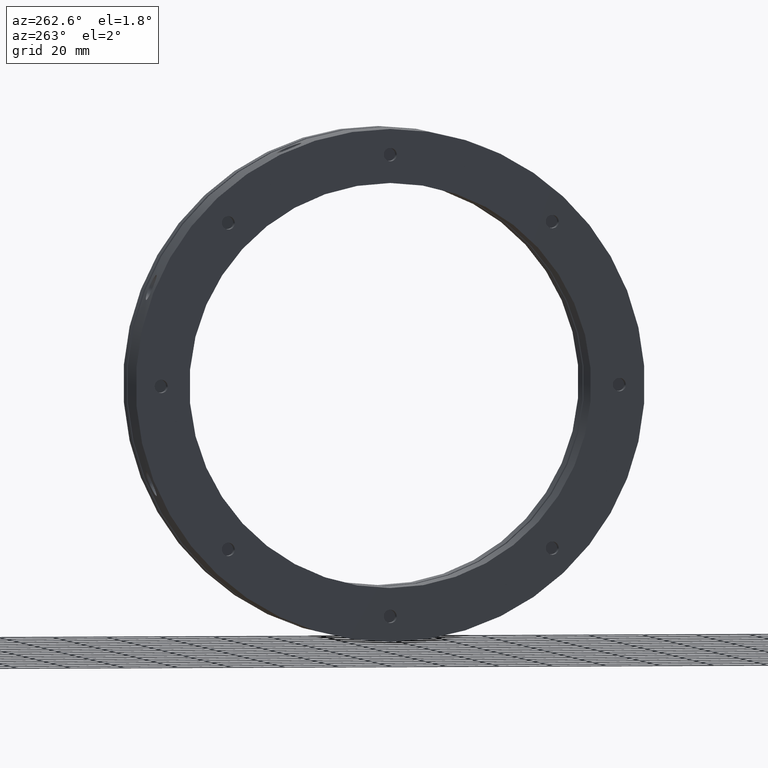
[diagram: clean part render]
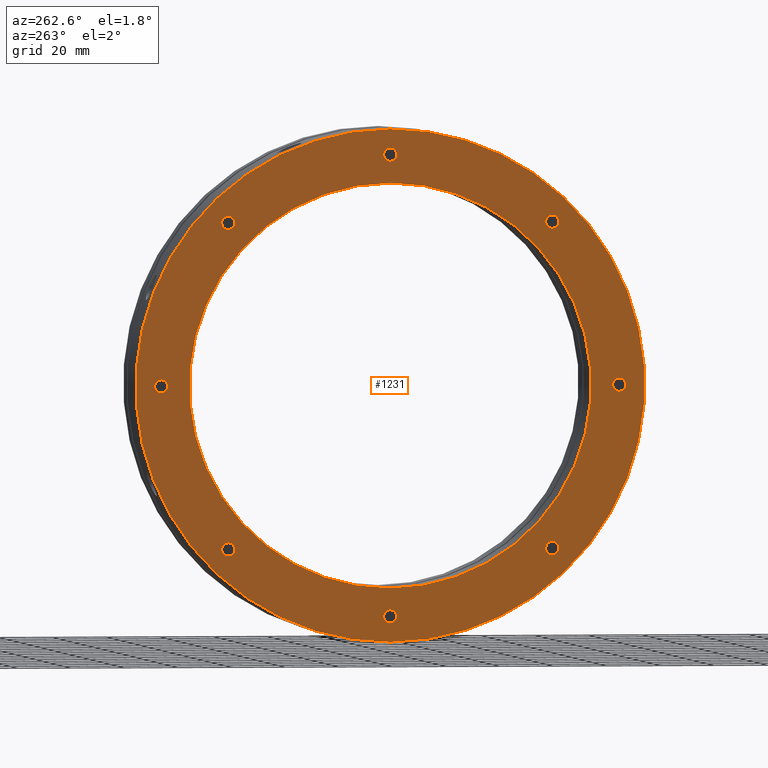
[diagram: same view with one face highlighted and labeled with its STEP entity id]
A machine part, auxiliary view. The second image highlights one B-rep face of the part: STEP entity #1231.
In plain terms, the highlighted planar face has unit normal (-1, 0, 0).
Its self-contained STEP definition (entity closure, byte-faithful):
#51 = FACE_BOUND ( 'NONE', #1506, .T. ) ;
#53 = FACE_BOUND ( 'NONE', #1517, .T. ) ;
#55 = FACE_BOUND ( 'NONE', #1516, .T. ) ;
#58 = FACE_BOUND ( 'NONE', #1488, .T. ) ;
#142 = FACE_OUTER_BOUND ( 'NONE', #1532, .T. ) ;
#462 = CARTESIAN_POINT ( 'NONE',  ( -2.428612866367529900E-014, 85.50000000000000000, -2.458500000000008300 ) ) ;
#488 = CARTESIAN_POINT ( 'NONE',  ( -2.428612866367529900E-014, -8.580704584429623500E-015, -87.95850000000001500 ) ) ;
#489 = CARTESIAN_POINT ( 'NONE',  ( -2.428612866367529900E-014, -85.50000000000000000, -2.458499999999999900 ) ) ;
#490 = CARTESIAN_POINT ( 'NONE',  ( -2.428612866367529900E-014, 85.50000000000000000, 2.458499999999991000 ) ) ;
#504 = CARTESIAN_POINT ( 'NONE',  ( -2.428612866367529900E-014, -60.45762979144981800, -62.91612979144981200 ) ) ;
#523 = CARTESIAN_POINT ( 'NONE',  ( -2.428612866367529900E-014, -8.881783999999999800E-015, -83.04149999999999900 ) ) ;
#528 = CARTESIAN_POINT ( 'NONE',  ( -2.428612866367529900E-014, -60.45762979144981800, -57.99912979144981100 ) ) ;
#530 = CARTESIAN_POINT ( 'NONE',  ( -2.428612866367529900E-014, 60.45762979144980400, -62.91612979144982600 ) ) ;
#532 = CARTESIAN_POINT ( 'NONE',  ( -2.428612866367529900E-014, 60.45762979144980400, -57.99912979144982500 ) ) ;
#533 = CARTESIAN_POINT ( 'NONE',  ( -2.428612866367529900E-014, 60.45762979144983300, 62.91612979144979800 ) ) ;
#605 = CARTESIAN_POINT ( 'NONE',  ( -2.428612866367529900E-014, 60.45762979144983300, 57.99912979144978900 ) ) ;
#666 = CARTESIAN_POINT ( 'NONE',  ( -2.428612866367529900E-014, -60.45762979144981800, -60.45762979144981100 ) ) ;
#667 = DIRECTION ( 'NONE',  ( 1.000000000000000000, -0.0000000000000000000, -0.0000000000000000000 ) ) ;
#668 = DIRECTION ( 'NONE',  ( 0.0000000000000000000, 0.0000000000000000000, 1.000000000000000000 ) ) ;
#692 = CARTESIAN_POINT ( 'NONE',  ( -2.428612866367529900E-014, -8.881783999999999800E-015, -85.50000000000000000 ) ) ;
#693 = DIRECTION ( 'NONE',  ( 1.000000000000000000, -0.0000000000000000000, -0.0000000000000000000 ) ) ;
#694 = DIRECTION ( 'NONE',  ( 0.0000000000000000000, 0.0000000000000000000, 1.000000000000000000 ) ) ;
#848 = CARTESIAN_POINT ( 'NONE',  ( -2.428612866367529900E-014, 85.50000000000000000, -8.881783999999999800E-015 ) ) ;
#849 = DIRECTION ( 'NONE',  ( 1.000000000000000000, -0.0000000000000000000, -0.0000000000000000000 ) ) ;
#850 = DIRECTION ( 'NONE',  ( 0.0000000000000000000, 0.0000000000000000000, 1.000000000000000000 ) ) ;
#956 = CARTESIAN_POINT ( 'NONE',  ( -2.428612866367529900E-014, 60.45762979144980400, -60.45762979144982600 ) ) ;
#957 = DIRECTION ( 'NONE',  ( 1.000000000000000000, -0.0000000000000000000, -0.0000000000000000000 ) ) ;
#958 = DIRECTION ( 'NONE',  ( 0.0000000000000000000, 0.0000000000000000000, 1.000000000000000000 ) ) ;
#1010 = CARTESIAN_POINT ( 'NONE',  ( -2.428612866367529900E-014, 60.45762979144983300, 60.45762979144979000 ) ) ;
#1011 = DIRECTION ( 'NONE',  ( 1.000000000000000000, -0.0000000000000000000, -0.0000000000000000000 ) ) ;
#1012 = DIRECTION ( 'NONE',  ( 0.0000000000000000000, 0.0000000000000000000, 1.000000000000000000 ) ) ;
#1035 = CARTESIAN_POINT ( 'NONE',  ( -2.428612866367529900E-014, 0.0000000000000000000, 85.50000000000000000 ) ) ;
#1036 = DIRECTION ( 'NONE',  ( 1.000000000000000000, -0.0000000000000000000, -0.0000000000000000000 ) ) ;
#1037 = DIRECTION ( 'NONE',  ( 0.0000000000000000000, 0.0000000000000000000, 1.000000000000000000 ) ) ;
#1052 = CARTESIAN_POINT ( 'NONE',  ( -2.428612866367529900E-014, -85.50000000000000000, 0.0000000000000000000 ) ) ;
#1053 = DIRECTION ( 'NONE',  ( 1.000000000000000000, -0.0000000000000000000, -0.0000000000000000000 ) ) ;
#1054 = DIRECTION ( 'NONE',  ( 0.0000000000000000000, 0.0000000000000000000, 1.000000000000000000 ) ) ;
#1069 = CARTESIAN_POINT ( 'NONE',  ( -2.081668171172168500E-014, 0.0000000000000000000, 0.0000000000000000000 ) ) ;
#1070 = DIRECTION ( 'NONE',  ( 1.000000000000000000, 0.0000000000000000000, 0.0000000000000000000 ) ) ;
#1071 = DIRECTION ( 'NONE',  ( 0.0000000000000000000, 0.0000000000000000000, -1.000000000000000000 ) ) ;
#1121 = CARTESIAN_POINT ( 'NONE',  ( -2.428612866367529900E-014, -60.45762979144981100, 60.45762979144981800 ) ) ;
#1122 = DIRECTION ( 'NONE',  ( 1.000000000000000000, -0.0000000000000000000, -0.0000000000000000000 ) ) ;
#1123 = DIRECTION ( 'NONE',  ( 0.0000000000000000000, 0.0000000000000000000, 1.000000000000000000 ) ) ;
#1149 = CIRCLE ( 'NONE', #5684, 2.458500000000002600 ) ;
#1185 = CIRCLE ( 'NONE', #1756, 2.458500000000002600 ) ;
#1231 = ADVANCED_FACE ( 'NONE', ( #3582, #3574, #3580, #3587, #3579, #53, #55, #51, #58, #142 ), #5750, .T. ) ;
#1399 = VERTEX_POINT ( 'NONE', #462 ) ;
#1439 = VERTEX_POINT ( 'NONE', #488 ) ;
#1441 = VERTEX_POINT ( 'NONE', #489 ) ;
#1442 = VERTEX_POINT ( 'NONE', #490 ) ;
#1465 = VERTEX_POINT ( 'NONE', #504 ) ;
#1488 = EDGE_LOOP ( 'NONE', ( #5402, #5401 ) ) ;
#1490 = EDGE_LOOP ( 'NONE', ( #5412, #5411 ) ) ;
#1492 = EDGE_LOOP ( 'NONE', ( #5418, #5417 ) ) ;
#1502 = EDGE_LOOP ( 'NONE', ( #5410, #5409 ) ) ;
#1506 = EDGE_LOOP ( 'NONE', ( #5404, #5403 ) ) ;
#1508 = VERTEX_POINT ( 'NONE', #523 ) ;
#1513 = EDGE_LOOP ( 'NONE', ( #5414, #5413 ) ) ;
#1516 = EDGE_LOOP ( 'NONE', ( #5406, #5405 ) ) ;
#1517 = EDGE_LOOP ( 'NONE', ( #5408, #5407 ) ) ;
#1522 = EDGE_LOOP ( 'NONE', ( #5416, #5415 ) ) ;
#1527 = VERTEX_POINT ( 'NONE', #528 ) ;
#1532 = EDGE_LOOP ( 'NONE', ( #5400, #5399 ) ) ;
#1534 = VERTEX_POINT ( 'NONE', #530 ) ;
#1536 = VERTEX_POINT ( 'NONE', #532 ) ;
#1541 = VERTEX_POINT ( 'NONE', #533 ) ;
#1614 = VERTEX_POINT ( 'NONE', #605 ) ;
#1674 = CIRCLE ( 'NONE', #1765, 2.458500000000002600 ) ;
#1688 = CIRCLE ( 'NONE', #1766, 2.458500000000002600 ) ;
#1756 = AXIS2_PLACEMENT_3D ( 'NONE', #956, #957, #958 ) ;
#1765 = AXIS2_PLACEMENT_3D ( 'NONE', #692, #693, #694 ) ;
#1766 = AXIS2_PLACEMENT_3D ( 'NONE', #666, #667, #668 ) ;
#1785 = AXIS2_PLACEMENT_3D ( 'NONE', #848, #849, #850 ) ;
#1817 = AXIS2_PLACEMENT_3D ( 'NONE', #5757, #5753, #5759 ) ;
#1840 = EDGE_CURVE ( 'NONE', #1527, #1465, #1688, .T. ) ;
#1850 = EDGE_CURVE ( 'NONE', #1508, #1439, #1674, .T. ) ;
#1886 = CIRCLE ( 'NONE', #5677, 2.458500000000002600 ) ;
#2427 = CARTESIAN_POINT ( 'NONE',  ( -2.428612866367529900E-014, -85.50000000000000000, 2.458499999999999900 ) ) ;
#2432 = CARTESIAN_POINT ( 'NONE',  ( -2.428612866367529900E-014, -60.45762979144981100, 57.99912979144981800 ) ) ;
#2437 = CARTESIAN_POINT ( 'NONE',  ( -2.428612866367529900E-014, 3.010794155703764200E-016, 83.04149999999999900 ) ) ;
#2442 = CARTESIAN_POINT ( 'NONE',  ( -2.428612866367529900E-014, -60.45762979144981100, 62.91612979144982600 ) ) ;
#2444 = CARTESIAN_POINT ( 'NONE',  ( -2.428612866367529900E-014, 0.0000000000000000000, 87.95850000000001500 ) ) ;
#2446 = CARTESIAN_POINT ( 'NONE',  ( -2.081668171172168500E-014, 9.184850993605148700E-015, 75.00000000000000000 ) ) ;
#2462 = CARTESIAN_POINT ( 'NONE',  ( -2.081668171172168500E-014, 0.0000000000000000000, -75.00000000000000000 ) ) ;
#2464 = CARTESIAN_POINT ( 'NONE',  ( -2.775557561562891400E-014, 0.0000000000000000000, -95.00000000000000000 ) ) ;
#2489 = CARTESIAN_POINT ( 'NONE',  ( -2.775557561562891400E-014, 1.163414459189985600E-014, 95.00000000000000000 ) ) ;
#2529 = CARTESIAN_POINT ( 'NONE',  ( -2.428612866367529900E-014, 60.45762979144983300, 60.45762979144979000 ) ) ;
#2530 = DIRECTION ( 'NONE',  ( 1.000000000000000000, -0.0000000000000000000, -0.0000000000000000000 ) ) ;
#2531 = DIRECTION ( 'NONE',  ( 0.0000000000000000000, 0.0000000000000000000, 1.000000000000000000 ) ) ;
#2532 = CARTESIAN_POINT ( 'NONE',  ( -2.428612866367529900E-014, 85.50000000000000000, -8.881783999999999800E-015 ) ) ;
#2533 = DIRECTION ( 'NONE',  ( 1.000000000000000000, -0.0000000000000000000, -0.0000000000000000000 ) ) ;
#2534 = DIRECTION ( 'NONE',  ( 0.0000000000000000000, 0.0000000000000000000, 1.000000000000000000 ) ) ;
#2535 = CARTESIAN_POINT ( 'NONE',  ( -2.428612866367529900E-014, 60.45762979144980400, -60.45762979144982600 ) ) ;
#2536 = DIRECTION ( 'NONE',  ( 1.000000000000000000, -0.0000000000000000000, -0.0000000000000000000 ) ) ;
#2537 = DIRECTION ( 'NONE',  ( 0.0000000000000000000, 0.0000000000000000000, 1.000000000000000000 ) ) ;
#2538 = CARTESIAN_POINT ( 'NONE',  ( -2.428612866367529900E-014, -8.881783999999999800E-015, -85.50000000000000000 ) ) ;
#2539 = DIRECTION ( 'NONE',  ( 1.000000000000000000, -0.0000000000000000000, -0.0000000000000000000 ) ) ;
#2540 = DIRECTION ( 'NONE',  ( 0.0000000000000000000, 0.0000000000000000000, 1.000000000000000000 ) ) ;
#2541 = CARTESIAN_POINT ( 'NONE',  ( -2.428612866367529900E-014, -60.45762979144981800, -60.45762979144981100 ) ) ;
#2542 = DIRECTION ( 'NONE',  ( 1.000000000000000000, -0.0000000000000000000, -0.0000000000000000000 ) ) ;
#2543 = DIRECTION ( 'NONE',  ( 0.0000000000000000000, 0.0000000000000000000, 1.000000000000000000 ) ) ;
#2544 = CARTESIAN_POINT ( 'NONE',  ( -2.428612866367529900E-014, -85.50000000000000000, 0.0000000000000000000 ) ) ;
#2545 = DIRECTION ( 'NONE',  ( 1.000000000000000000, -0.0000000000000000000, -0.0000000000000000000 ) ) ;
#2546 = DIRECTION ( 'NONE',  ( 0.0000000000000000000, 0.0000000000000000000, 1.000000000000000000 ) ) ;
#2547 = CARTESIAN_POINT ( 'NONE',  ( -2.428612866367529900E-014, -60.45762979144981100, 60.45762979144981800 ) ) ;
#2548 = DIRECTION ( 'NONE',  ( 1.000000000000000000, -0.0000000000000000000, -0.0000000000000000000 ) ) ;
#2549 = DIRECTION ( 'NONE',  ( 0.0000000000000000000, 0.0000000000000000000, 1.000000000000000000 ) ) ;
#2551 = CARTESIAN_POINT ( 'NONE',  ( -2.428612866367529900E-014, 0.0000000000000000000, 85.50000000000000000 ) ) ;
#2552 = DIRECTION ( 'NONE',  ( 1.000000000000000000, -0.0000000000000000000, -0.0000000000000000000 ) ) ;
#2553 = DIRECTION ( 'NONE',  ( 0.0000000000000000000, 0.0000000000000000000, 1.000000000000000000 ) ) ;
#2555 = CARTESIAN_POINT ( 'NONE',  ( -2.081668171172168500E-014, 0.0000000000000000000, 0.0000000000000000000 ) ) ;
#2556 = DIRECTION ( 'NONE',  ( 1.000000000000000000, 0.0000000000000000000, 0.0000000000000000000 ) ) ;
#2557 = DIRECTION ( 'NONE',  ( 0.0000000000000000000, 0.0000000000000000000, -1.000000000000000000 ) ) ;
#2713 = CARTESIAN_POINT ( 'NONE',  ( -2.775557561562891400E-014, 0.0000000000000000000, 0.0000000000000000000 ) ) ;
#2714 = DIRECTION ( 'NONE',  ( 1.000000000000000000, 0.0000000000000000000, 0.0000000000000000000 ) ) ;
#2715 = DIRECTION ( 'NONE',  ( 0.0000000000000000000, 0.0000000000000000000, -1.000000000000000000 ) ) ;
#2992 = CARTESIAN_POINT ( 'NONE',  ( -2.775557561562891400E-014, 0.0000000000000000000, 0.0000000000000000000 ) ) ;
#2993 = DIRECTION ( 'NONE',  ( 1.000000000000000000, 0.0000000000000000000, 0.0000000000000000000 ) ) ;
#2994 = DIRECTION ( 'NONE',  ( 0.0000000000000000000, 0.0000000000000000000, -1.000000000000000000 ) ) ;
#3492 = EDGE_CURVE ( 'NONE', #1442, #1399, #4140, .T. ) ;
#3535 = EDGE_CURVE ( 'NONE', #1536, #1534, #1185, .T. ) ;
#3558 = EDGE_CURVE ( 'NONE', #1541, #1614, #1149, .T. ) ;
#3574 = FACE_BOUND ( 'NONE', #1522, .T. ) ;
#3579 = FACE_BOUND ( 'NONE', #1502, .T. ) ;
#3580 = FACE_BOUND ( 'NONE', #1513, .T. ) ;
#3582 = FACE_BOUND ( 'NONE', #1492, .T. ) ;
#3587 = FACE_BOUND ( 'NONE', #1490, .T. ) ;
#3838 = EDGE_CURVE ( 'NONE', #4163, #4162, #6030, .T. ) ;
#3845 = EDGE_CURVE ( 'NONE', #4155, #1441, #6021, .T. ) ;
#3851 = EDGE_CURVE ( 'NONE', #4165, #4181, #6013, .T. ) ;
#3873 = EDGE_CURVE ( 'NONE', #4159, #4158, #1886, .T. ) ;
#4140 = CIRCLE ( 'NONE', #1785, 2.458499999999999900 ) ;
#4155 = VERTEX_POINT ( 'NONE', #2427 ) ;
#4158 = VERTEX_POINT ( 'NONE', #2432 ) ;
#4159 = VERTEX_POINT ( 'NONE', #2442 ) ;
#4162 = VERTEX_POINT ( 'NONE', #2437 ) ;
#4163 = VERTEX_POINT ( 'NONE', #2444 ) ;
#4165 = VERTEX_POINT ( 'NONE', #2446 ) ;
#4181 = VERTEX_POINT ( 'NONE', #2462 ) ;
#4183 = VERTEX_POINT ( 'NONE', #2464 ) ;
#4208 = VERTEX_POINT ( 'NONE', #2489 ) ;
#4578 = CIRCLE ( 'NONE', #5085, 2.458500000000002600 ) ;
#4579 = CIRCLE ( 'NONE', #5084, 2.458499999999999900 ) ;
#4580 = CIRCLE ( 'NONE', #5083, 2.458500000000002600 ) ;
#4581 = CIRCLE ( 'NONE', #5082, 2.458500000000002600 ) ;
#4582 = CIRCLE ( 'NONE', #5081, 2.458500000000002600 ) ;
#4583 = CIRCLE ( 'NONE', #5080, 2.458499999999999900 ) ;
#4584 = CIRCLE ( 'NONE', #5079, 2.458500000000002600 ) ;
#4585 = CIRCLE ( 'NONE', #5078, 2.458500000000002600 ) ;
#4586 = CIRCLE ( 'NONE', #5077, 75.00000000000000000 ) ;
#4588 = CIRCLE ( 'NONE', #5075, 95.00000000000000000 ) ;
#4652 = CIRCLE ( 'NONE', #5063, 95.00000000000000000 ) ;
#5063 = AXIS2_PLACEMENT_3D ( 'NONE', #2992, #2993, #2994 ) ;
#5075 = AXIS2_PLACEMENT_3D ( 'NONE', #2713, #2714, #2715 ) ;
#5077 = AXIS2_PLACEMENT_3D ( 'NONE', #2555, #2556, #2557 ) ;
#5078 = AXIS2_PLACEMENT_3D ( 'NONE', #2551, #2552, #2553 ) ;
#5079 = AXIS2_PLACEMENT_3D ( 'NONE', #2547, #2548, #2549 ) ;
#5080 = AXIS2_PLACEMENT_3D ( 'NONE', #2544, #2545, #2546 ) ;
#5081 = AXIS2_PLACEMENT_3D ( 'NONE', #2541, #2542, #2543 ) ;
#5082 = AXIS2_PLACEMENT_3D ( 'NONE', #2538, #2539, #2540 ) ;
#5083 = AXIS2_PLACEMENT_3D ( 'NONE', #2535, #2536, #2537 ) ;
#5084 = AXIS2_PLACEMENT_3D ( 'NONE', #2532, #2533, #2534 ) ;
#5085 = AXIS2_PLACEMENT_3D ( 'NONE', #2529, #2530, #2531 ) ;
#5171 = EDGE_CURVE ( 'NONE', #1614, #1541, #4578, .T. ) ;
#5172 = EDGE_CURVE ( 'NONE', #1399, #1442, #4579, .T. ) ;
#5173 = EDGE_CURVE ( 'NONE', #1534, #1536, #4580, .T. ) ;
#5174 = EDGE_CURVE ( 'NONE', #1439, #1508, #4581, .T. ) ;
#5175 = EDGE_CURVE ( 'NONE', #1465, #1527, #4582, .T. ) ;
#5176 = EDGE_CURVE ( 'NONE', #1441, #4155, #4583, .T. ) ;
#5177 = EDGE_CURVE ( 'NONE', #4158, #4159, #4584, .T. ) ;
#5178 = EDGE_CURVE ( 'NONE', #4162, #4163, #4585, .T. ) ;
#5179 = EDGE_CURVE ( 'NONE', #4181, #4165, #4586, .T. ) ;
#5185 = EDGE_CURVE ( 'NONE', #4208, #4183, #4588, .T. ) ;
#5228 = EDGE_CURVE ( 'NONE', #4183, #4208, #4652, .T. ) ;
#5399 = ORIENTED_EDGE ( 'NONE', *, *, #5185, .F. ) ;
#5400 = ORIENTED_EDGE ( 'NONE', *, *, #5228, .F. ) ;
#5401 = ORIENTED_EDGE ( 'NONE', *, *, #5171, .T. ) ;
#5402 = ORIENTED_EDGE ( 'NONE', *, *, #3558, .T. ) ;
#5403 = ORIENTED_EDGE ( 'NONE', *, *, #5172, .T. ) ;
#5404 = ORIENTED_EDGE ( 'NONE', *, *, #3492, .T. ) ;
#5405 = ORIENTED_EDGE ( 'NONE', *, *, #5173, .T. ) ;
#5406 = ORIENTED_EDGE ( 'NONE', *, *, #3535, .T. ) ;
#5407 = ORIENTED_EDGE ( 'NONE', *, *, #5174, .T. ) ;
#5408 = ORIENTED_EDGE ( 'NONE', *, *, #1850, .T. ) ;
#5409 = ORIENTED_EDGE ( 'NONE', *, *, #5175, .T. ) ;
#5410 = ORIENTED_EDGE ( 'NONE', *, *, #1840, .T. ) ;
#5411 = ORIENTED_EDGE ( 'NONE', *, *, #5176, .T. ) ;
#5412 = ORIENTED_EDGE ( 'NONE', *, *, #3845, .T. ) ;
#5413 = ORIENTED_EDGE ( 'NONE', *, *, #5177, .T. ) ;
#5414 = ORIENTED_EDGE ( 'NONE', *, *, #3873, .T. ) ;
#5415 = ORIENTED_EDGE ( 'NONE', *, *, #5178, .T. ) ;
#5416 = ORIENTED_EDGE ( 'NONE', *, *, #3838, .T. ) ;
#5417 = ORIENTED_EDGE ( 'NONE', *, *, #3851, .T. ) ;
#5418 = ORIENTED_EDGE ( 'NONE', *, *, #5179, .T. ) ;
#5677 = AXIS2_PLACEMENT_3D ( 'NONE', #1121, #1122, #1123 ) ;
#5680 = AXIS2_PLACEMENT_3D ( 'NONE', #1069, #1070, #1071 ) ;
#5684 = AXIS2_PLACEMENT_3D ( 'NONE', #1010, #1011, #1012 ) ;
#5695 = AXIS2_PLACEMENT_3D ( 'NONE', #1052, #1053, #1054 ) ;
#5698 = AXIS2_PLACEMENT_3D ( 'NONE', #1035, #1036, #1037 ) ;
#5750 = PLANE ( 'NONE',  #1817 ) ;
#5753 = DIRECTION ( 'NONE',  ( -1.000000000000000000, 0.0000000000000000000, 0.0000000000000000000 ) ) ;
#5757 = CARTESIAN_POINT ( 'NONE',  ( -2.435691000000000100E-014, 85.00000000000000000, 0.0000000000000000000 ) ) ;
#5759 = DIRECTION ( 'NONE',  ( 0.0000000000000000000, 0.0000000000000000000, 1.000000000000000000 ) ) ;
#6013 = CIRCLE ( 'NONE', #5680, 75.00000000000000000 ) ;
#6021 = CIRCLE ( 'NONE', #5695, 2.458499999999999900 ) ;
#6030 = CIRCLE ( 'NONE', #5698, 2.458500000000002600 ) ;